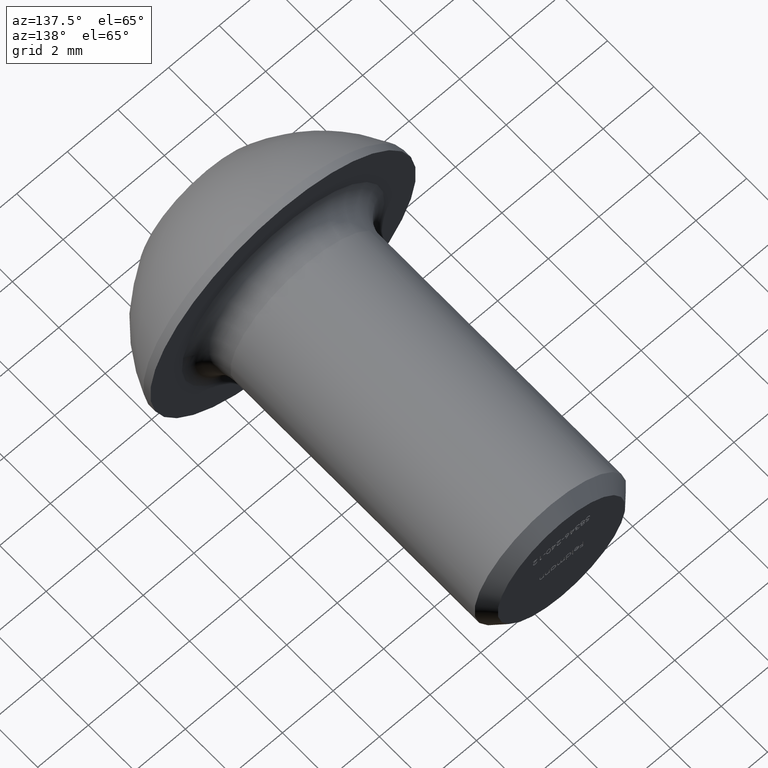
[diagram: clean part render]
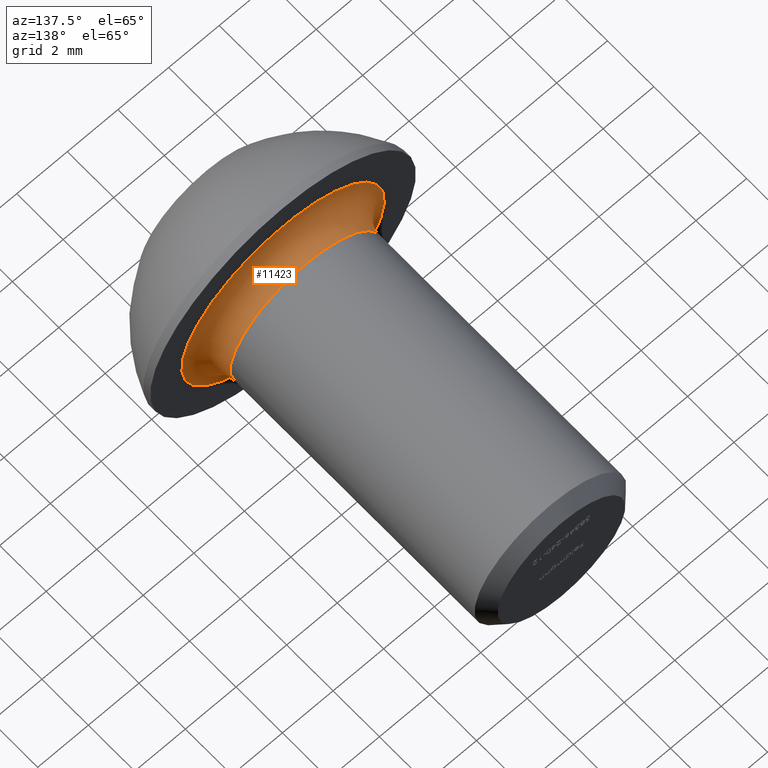
[diagram: same view with one face highlighted and labeled with its STEP entity id]
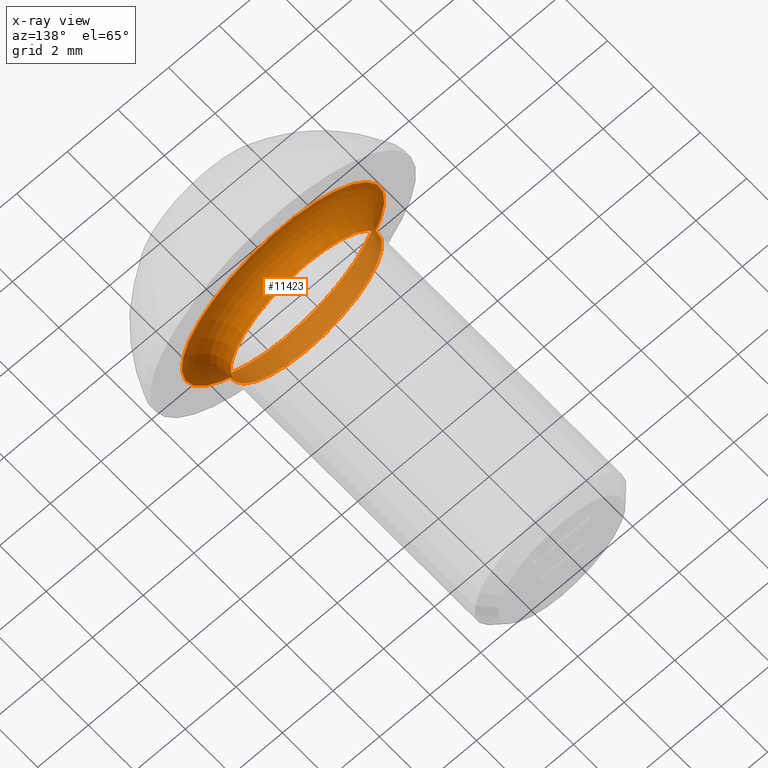
[diagram: x-ray of the same camera — body ghosted, the highlighted face saturated]
A machine part, auxiliary view. The second image highlights one B-rep face of the part: STEP entity #11423.
The next image is the same camera in x-ray: the body ghosted, the highlighted face saturated — about 26% of this face is hidden behind the body in this view.
In plain terms, the highlighted toroidal blend (fillet) surface has major radius 4 mm and minor (blend) radius 1 mm.
Its self-contained STEP definition (entity closure, byte-faithful):
#26 = CARTESIAN_POINT ( 'NONE',  ( 0.0000000000000000000, 4.299999999999999800, 0.0000000000000000000 ) ) ;
#964 = EDGE_CURVE ( 'NONE', #5682, #5682, #13496, .T. ) ;
#2561 = CIRCLE ( 'NONE', #3335, 3.999999999999998200 ) ;
#3144 = DIRECTION ( 'NONE',  ( -0.0000000000000000000, -1.000000000000000000, -0.0000000000000000000 ) ) ;
#3335 = AXIS2_PLACEMENT_3D ( 'NONE', #13732, #3144, #10318 ) ;
#3772 = ORIENTED_EDGE ( 'NONE', *, *, #13408, .F. ) ;
#4405 = EDGE_LOOP ( 'NONE', ( #3772 ) ) ;
#4548 = VERTEX_POINT ( 'NONE', #14626 ) ;
#5682 = VERTEX_POINT ( 'NONE', #7121 ) ;
#5959 = CARTESIAN_POINT ( 'NONE',  ( 0.0000000000000000000, 4.299999999999999800, 0.0000000000000000000 ) ) ;
#7121 = CARTESIAN_POINT ( 'NONE',  ( 0.0000000000000000000, 4.299999999999999800, -2.999999999999997800 ) ) ;
#8263 = DIRECTION ( 'NONE',  ( 0.0000000000000000000, 0.0000000000000000000, -1.000000000000000000 ) ) ;
#8587 = ORIENTED_EDGE ( 'NONE', *, *, #964, .F. ) ;
#10318 = DIRECTION ( 'NONE',  ( 0.0000000000000000000, 0.0000000000000000000, -1.000000000000000000 ) ) ;
#10666 = AXIS2_PLACEMENT_3D ( 'NONE', #5959, #11930, #8263 ) ;
#10771 = DIRECTION ( 'NONE',  ( 0.0000000000000000000, 1.000000000000000000, 0.0000000000000000000 ) ) ;
#11423 = ADVANCED_FACE ( 'NONE', ( #14338, #12664 ), #14725, .F. ) ;
#11930 = DIRECTION ( 'NONE',  ( -0.0000000000000000000, -1.000000000000000000, -0.0000000000000000000 ) ) ;
#12664 = FACE_OUTER_BOUND ( 'NONE', #4405, .T. ) ;
#13408 = EDGE_CURVE ( 'NONE', #4548, #4548, #2561, .T. ) ;
#13496 = CIRCLE ( 'NONE', #14850, 2.999999999999997800 ) ;
#13555 = EDGE_LOOP ( 'NONE', ( #8587 ) ) ;
#13732 = CARTESIAN_POINT ( 'NONE',  ( 0.0000000000000000000, 3.299999999999999800, 0.0000000000000000000 ) ) ;
#14330 = DIRECTION ( 'NONE',  ( 0.0000000000000000000, 0.0000000000000000000, -1.000000000000000000 ) ) ;
#14338 = FACE_OUTER_BOUND ( 'NONE', #13555, .T. ) ;
#14626 = CARTESIAN_POINT ( 'NONE',  ( 0.0000000000000000000, 3.299999999999999800, -3.999999999999998200 ) ) ;
#14725 = TOROIDAL_SURFACE ( 'NONE', #10666, 3.999999999999998200, 1.000000000000000000 ) ;
#14850 = AXIS2_PLACEMENT_3D ( 'NONE', #26, #10771, #14330 ) ;